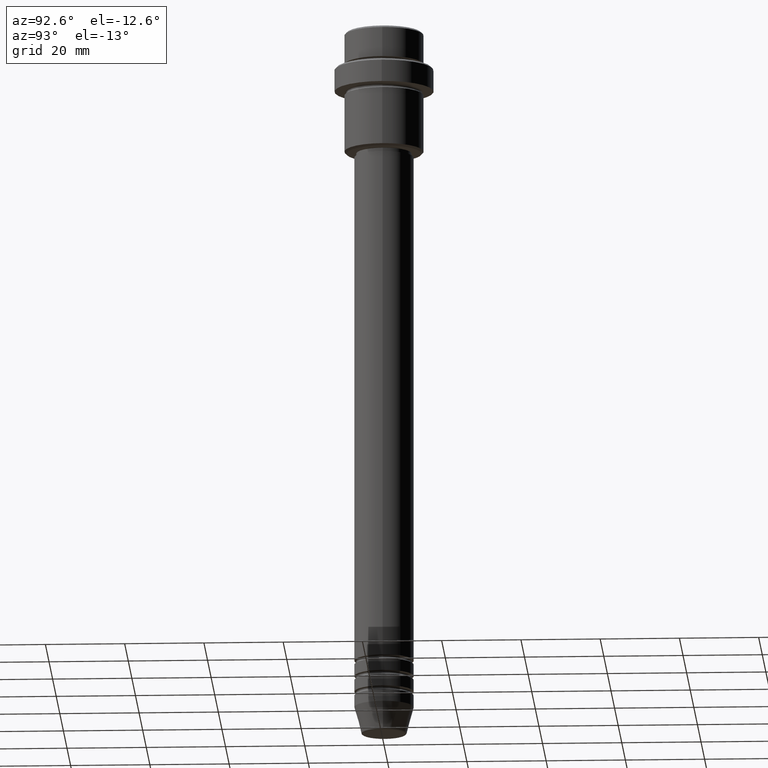
[diagram: clean part render]
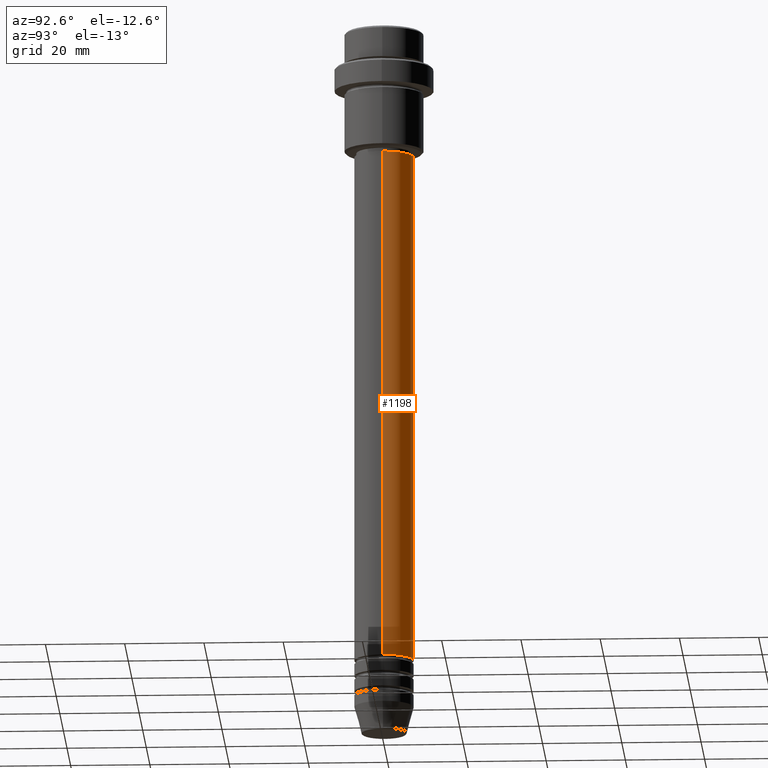
[diagram: same view with one face highlighted and labeled with its STEP entity id]
A machine part, auxiliary view. The second image highlights one B-rep face of the part: STEP entity #1198.
In plain terms, the highlighted cylindrical surface (edge-blend (fillet) strip) has radius 7.5 mm, axis along (-0, -0, 1).
Its self-contained STEP definition (entity closure, byte-faithful):
#25 = CARTESIAN_POINT ( 'NONE',  ( 0.000000000000000000, 0.000000000000000000, 0.000000000000000000 ) ) ;
#26 = EDGE_CURVE ( 'NONE', #803, #307, #286, .T. ) ;
#27 = LINE ( 'NONE', #115, #1329 ) ;
#51 = AXIS2_PLACEMENT_3D ( 'NONE', #505, #712, #941 ) ;
#73 = DIRECTION ( 'NONE',  ( -0.000000000000000000, -0.000000000000000000, 1.000000000000000000 ) ) ;
#96 = CARTESIAN_POINT ( 'NONE',  ( -7.500000000000000000, 9.184850993605147944E-16, -31.99999999999998579 ) ) ;
#115 = CARTESIAN_POINT ( 'NONE',  ( -7.500000000000000000, 9.184850993605147944E-16, 0.000000000000000000 ) ) ;
#150 = ORIENTED_EDGE ( 'NONE', *, *, #696, .T. ) ;
#161 = ORIENTED_EDGE ( 'NONE', *, *, #370, .F. ) ;
#181 = EDGE_LOOP ( 'NONE', ( #589, #150, #600, #161 ) ) ;
#286 = CIRCLE ( 'NONE', #51, 7.500000000000000000 ) ;
#307 = VERTEX_POINT ( 'NONE', #96 ) ;
#318 = CIRCLE ( 'NONE', #759, 7.500000000000000000 ) ;
#370 = EDGE_CURVE ( 'NONE', #688, #803, #849, .T. ) ;
#383 = CYLINDRICAL_SURFACE ( 'NONE', #1358, 7.500000000000000000 ) ;
#414 = VERTEX_POINT ( 'NONE', #1300 ) ;
#505 = CARTESIAN_POINT ( 'NONE',  ( 0.000000000000000000, 0.000000000000000000, -31.99999999999998579 ) ) ;
#589 = ORIENTED_EDGE ( 'NONE', *, *, #881, .T. ) ;
#598 = FACE_OUTER_BOUND ( 'NONE', #181, .T. ) ;
#600 = ORIENTED_EDGE ( 'NONE', *, *, #26, .F. ) ;
#617 = CARTESIAN_POINT ( 'NONE',  ( 7.500000000000000000, 0.000000000000000000, -31.99999999999998579 ) ) ;
#688 = VERTEX_POINT ( 'NONE', #900 ) ;
#696 = EDGE_CURVE ( 'NONE', #414, #307, #27, .T. ) ;
#704 = VECTOR ( 'NONE', #950, 1000.000000000000000 ) ;
#712 = DIRECTION ( 'NONE',  ( -0.000000000000000000, -0.000000000000000000, 1.000000000000000000 ) ) ;
#737 = CARTESIAN_POINT ( 'NONE',  ( 7.500000000000000000, 0.000000000000000000, 0.000000000000000000 ) ) ;
#759 = AXIS2_PLACEMENT_3D ( 'NONE', #1045, #73, #1390 ) ;
#790 = DIRECTION ( 'NONE',  ( -0.000000000000000000, -0.000000000000000000, 1.000000000000000000 ) ) ;
#803 = VERTEX_POINT ( 'NONE', #617 ) ;
#849 = LINE ( 'NONE', #737, #704 ) ;
#881 = EDGE_CURVE ( 'NONE', #688, #414, #318, .T. ) ;
#900 = CARTESIAN_POINT ( 'NONE',  ( 7.500000000000000000, 0.000000000000000000, -161.9999999999998579 ) ) ;
#922 = DIRECTION ( 'NONE',  ( -0.000000000000000000, -0.000000000000000000, 1.000000000000000000 ) ) ;
#941 = DIRECTION ( 'NONE',  ( 1.000000000000000000, 0.000000000000000000, 0.000000000000000000 ) ) ;
#950 = DIRECTION ( 'NONE',  ( -0.000000000000000000, -0.000000000000000000, 1.000000000000000000 ) ) ;
#1045 = CARTESIAN_POINT ( 'NONE',  ( 0.000000000000000000, 0.000000000000000000, -161.9999999999998579 ) ) ;
#1198 = ADVANCED_FACE ( 'NONE', ( #598 ), #383, .T. ) ;
#1225 = DIRECTION ( 'NONE',  ( 1.000000000000000000, 0.000000000000000000, 0.000000000000000000 ) ) ;
#1300 = CARTESIAN_POINT ( 'NONE',  ( -7.500000000000000000, 9.184850993605147944E-16, -161.9999999999998579 ) ) ;
#1329 = VECTOR ( 'NONE', #790, 1000.000000000000000 ) ;
#1358 = AXIS2_PLACEMENT_3D ( 'NONE', #25, #922, #1225 ) ;
#1390 = DIRECTION ( 'NONE',  ( 1.000000000000000000, 0.000000000000000000, 0.000000000000000000 ) ) ;